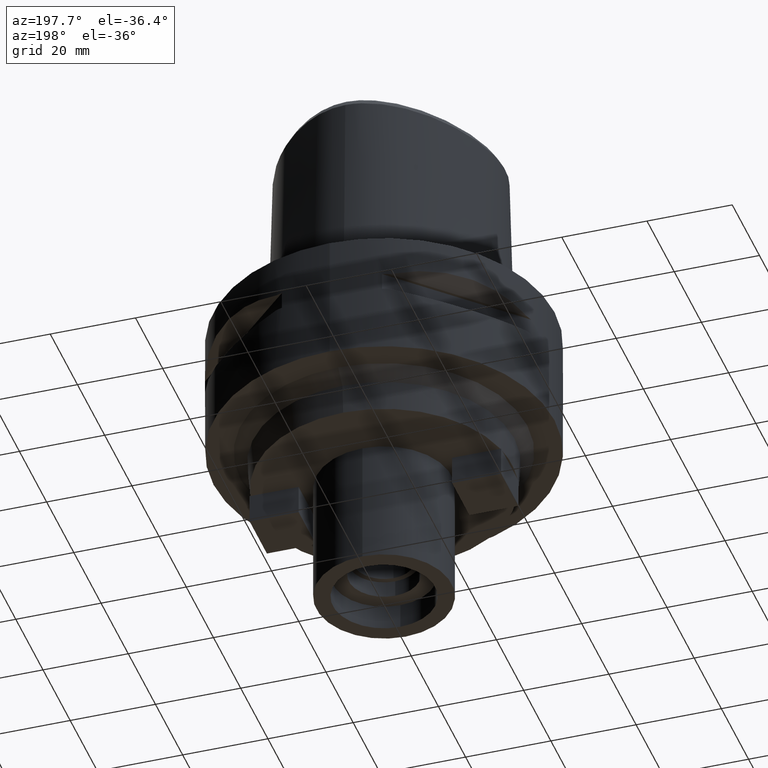
[diagram: clean part render]
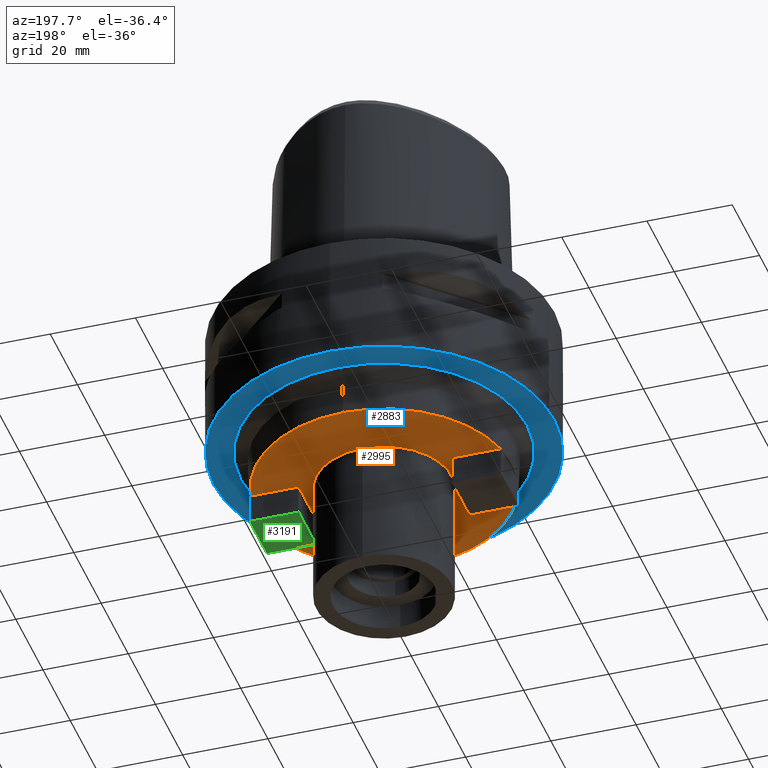
[diagram: same view with three faces highlighted in distinct colors, each labeled with its STEP entity id]
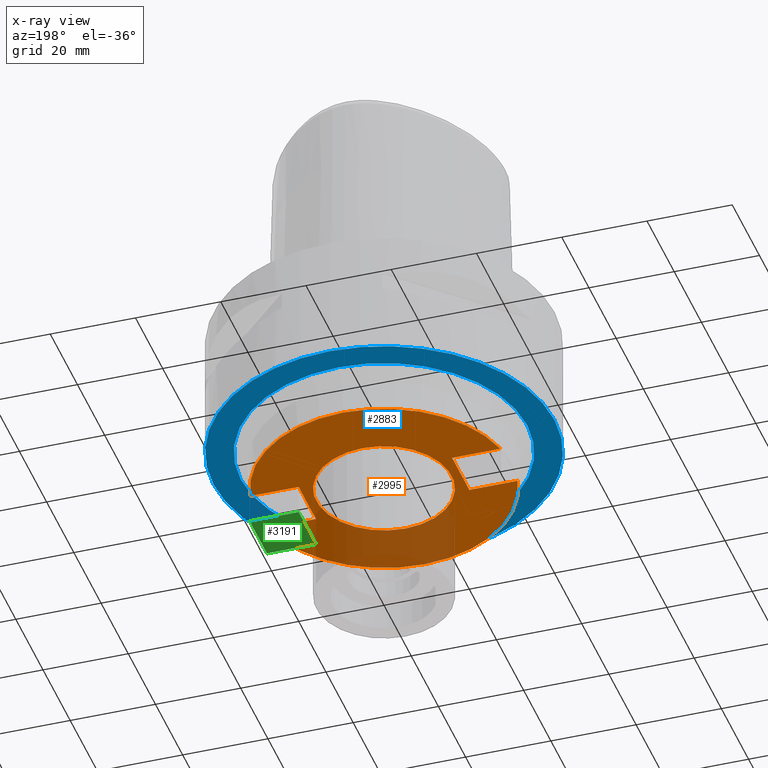
[diagram: x-ray of the same camera — body ghosted, the three highlighted faces saturated]
A machine part, auxiliary view with three faces highlighted in distinct colors.
The next image is the same camera in x-ray (body ghosted, the three faces saturated) — at least one of them is partly hidden behind the body in this view.
Their STEP definitions:

[orange] entity #2995 — the highlighted planar face has unit normal (0, 0, -1).
#633=DIRECTION('',(-1.E0,-1.255347302156E-14,0.E0));
#634=VECTOR('',#633,1.132025750228E1);
#635=CARTESIAN_POINT('',(-1.8E1,-6.35E0,-4.E1));
#636=LINE('',#635,#634);
#640=CARTESIAN_POINT('',(0.E0,0.E0,-4.E1));
#641=DIRECTION('',(0.E0,0.E0,1.E0));
#642=DIRECTION('',(-9.773419167427E-1,-2.116666666667E-1,0.E0));
#643=AXIS2_PLACEMENT_3D('',#640,#641,#642);
#648=CARTESIAN_POINT('',(0.E0,0.E0,-4.E1));
#649=DIRECTION('',(0.E0,0.E0,1.E0));
#650=DIRECTION('',(0.E0,-1.E0,0.E0));
#651=AXIS2_PLACEMENT_3D('',#648,#649,#650);
#656=DIRECTION('',(1.E0,0.E0,0.E0));
#657=VECTOR('',#656,1.132025750228E1);
#658=CARTESIAN_POINT('',(1.8E1,6.35E0,-4.E1));
#659=LINE('',#658,#657);
#663=CARTESIAN_POINT('',(0.E0,0.E0,-4.E1));
#664=DIRECTION('',(0.E0,0.E0,1.E0));
#665=DIRECTION('',(9.773419167427E-1,2.116666666667E-1,0.E0));
#666=AXIS2_PLACEMENT_3D('',#663,#664,#665);
#671=CARTESIAN_POINT('',(0.E0,0.E0,-4.E1));
#672=DIRECTION('',(0.E0,0.E0,1.E0));
#673=DIRECTION('',(0.E0,1.E0,0.E0));
#674=AXIS2_PLACEMENT_3D('',#671,#672,#673);
#679=CARTESIAN_POINT('',(0.E0,0.E0,-4.E1));
#680=DIRECTION('',(0.E0,0.E0,-1.E0));
#681=DIRECTION('',(0.E0,-1.E0,0.E0));
#682=AXIS2_PLACEMENT_3D('',#679,#680,#681);
#687=CARTESIAN_POINT('',(0.E0,0.E0,-4.E1));
#688=DIRECTION('',(0.E0,0.E0,-1.E0));
#689=DIRECTION('',(0.E0,1.E0,0.E0));
#690=AXIS2_PLACEMENT_3D('',#687,#688,#689);
#695=DIRECTION('',(-1.E0,0.E0,0.E0));
#696=VECTOR('',#695,1.132025750228E1);
#697=CARTESIAN_POINT('',(-1.8E1,6.35E0,-4.E1));
#698=LINE('',#697,#696);
#774=DIRECTION('',(0.E0,1.E0,0.E0));
#775=VECTOR('',#774,1.27E1);
#776=CARTESIAN_POINT('',(-1.8E1,-6.35E0,-4.E1));
#777=LINE('',#776,#775);
#831=DIRECTION('',(1.E0,0.E0,0.E0));
#832=VECTOR('',#831,1.132025750228E1);
#833=CARTESIAN_POINT('',(1.8E1,-6.35E0,-4.E1));
#834=LINE('',#833,#832);
#903=DIRECTION('',(0.E0,-1.E0,0.E0));
#904=VECTOR('',#903,1.27E1);
#905=CARTESIAN_POINT('',(1.8E1,6.35E0,-4.E1));
#906=LINE('',#905,#904);
#1891=CARTESIAN_POINT('',(2.932025750228E1,6.35E0,-4.E1));
#1893=VERTEX_POINT('',#1891);
#1896=CARTESIAN_POINT('',(2.932025750228E1,-6.35E0,-4.E1));
#1897=VERTEX_POINT('',#1896);
#1898=CARTESIAN_POINT('',(0.E0,-3.E1,-4.E1));
#1899=VERTEX_POINT('',#1898);
#1900=CARTESIAN_POINT('',(0.E0,3.E1,-4.E1));
#1901=VERTEX_POINT('',#1900);
#1906=CARTESIAN_POINT('',(1.8E1,6.35E0,-4.E1));
#1907=VERTEX_POINT('',#1906);
#1912=CARTESIAN_POINT('',(-1.8E1,6.35E0,-4.E1));
#1913=CARTESIAN_POINT('',(-2.932025750228E1,6.35E0,-4.E1));
#1914=VERTEX_POINT('',#1912);
#1915=VERTEX_POINT('',#1913);
#1916=CARTESIAN_POINT('',(-1.8E1,-6.35E0,-4.E1));
#1917=VERTEX_POINT('',#1916);
#1918=CARTESIAN_POINT('',(-2.932025750228E1,-6.35E0,-4.E1));
#1919=VERTEX_POINT('',#1918);
#1920=CARTESIAN_POINT('',(1.8E1,-6.35E0,-4.E1));
#1921=VERTEX_POINT('',#1920);
#1922=CARTESIAN_POINT('',(0.E0,-1.5875E1,-4.E1));
#1923=CARTESIAN_POINT('',(0.E0,1.5875E1,-4.E1));
#1924=VERTEX_POINT('',#1922);
#1925=VERTEX_POINT('',#1923);
#2965=CARTESIAN_POINT('',(0.E0,0.E0,-4.E1));
#2966=DIRECTION('',(0.E0,0.E0,-1.E0));
#2967=DIRECTION('',(0.E0,-1.E0,0.E0));
#2968=AXIS2_PLACEMENT_3D('',#2965,#2966,#2967);
#2969=PLANE('',#2968);
#2971=ORIENTED_EDGE('',*,*,#2970,.F.);
#2973=ORIENTED_EDGE('',*,*,#2972,.F.);
#2975=ORIENTED_EDGE('',*,*,#2974,.T.);
#2977=ORIENTED_EDGE('',*,*,#2976,.T.);
#2978=ORIENTED_EDGE('',*,*,#2923,.T.);
#2980=ORIENTED_EDGE('',*,*,#2979,.F.);
#2982=ORIENTED_EDGE('',*,*,#2981,.F.);
#2983=ORIENTED_EDGE('',*,*,#2953,.T.);
#2984=ORIENTED_EDGE('',*,*,#2930,.T.);
#2986=ORIENTED_EDGE('',*,*,#2985,.T.);
#2987=EDGE_LOOP('',(#2971,#2973,#2975,#2977,#2978,#2980,#2982,#2983,#2984,
#2986));
#2988=FACE_OUTER_BOUND('',#2987,.F.);
#2990=ORIENTED_EDGE('',*,*,#2989,.T.);
#2992=ORIENTED_EDGE('',*,*,#2991,.T.);
#2993=EDGE_LOOP('',(#2990,#2992));
#2994=FACE_BOUND('',#2993,.F.);
#644=CIRCLE('',#643,3.E1);
#652=CIRCLE('',#651,3.E1);
#667=CIRCLE('',#666,3.E1);
#675=CIRCLE('',#674,3.E1);
#683=CIRCLE('',#682,1.5875E1);
#691=CIRCLE('',#690,1.5875E1);
#2923=EDGE_CURVE('',#1899,#1897,#652,.T.);
#2930=EDGE_CURVE('',#1893,#1901,#667,.T.);
#2953=EDGE_CURVE('',#1907,#1893,#659,.T.);
#2970=EDGE_CURVE('',#1914,#1915,#698,.T.);
#2972=EDGE_CURVE('',#1917,#1914,#777,.T.);
#2974=EDGE_CURVE('',#1917,#1919,#636,.T.);
#2976=EDGE_CURVE('',#1919,#1899,#644,.T.);
#2979=EDGE_CURVE('',#1921,#1897,#834,.T.);
#2981=EDGE_CURVE('',#1907,#1921,#906,.T.);
#2985=EDGE_CURVE('',#1901,#1915,#675,.T.);
#2989=EDGE_CURVE('',#1924,#1925,#683,.T.);
#2991=EDGE_CURVE('',#1925,#1924,#691,.T.);
#2995=ADVANCED_FACE('',(#2988,#2994),#2969,.T.);

[blue] entity #2883 — the highlighted planar face has unit normal (0, 0, -1).
#521=CARTESIAN_POINT('',(0.E0,0.E0,-3.E1));
#522=DIRECTION('',(0.E0,0.E0,1.E0));
#523=DIRECTION('',(0.E0,-1.E0,0.E0));
#524=AXIS2_PLACEMENT_3D('',#521,#522,#523);
#529=CARTESIAN_POINT('',(0.E0,0.E0,-3.E1));
#530=DIRECTION('',(0.E0,0.E0,1.E0));
#531=DIRECTION('',(0.E0,1.E0,0.E0));
#532=AXIS2_PLACEMENT_3D('',#529,#530,#531);
#537=CARTESIAN_POINT('',(0.E0,0.E0,-3.E1));
#538=DIRECTION('',(0.E0,0.E0,-1.E0));
#539=DIRECTION('',(0.E0,-1.E0,0.E0));
#540=AXIS2_PLACEMENT_3D('',#537,#538,#539);
#545=CARTESIAN_POINT('',(0.E0,0.E0,-3.E1));
#546=DIRECTION('',(0.E0,0.E0,-1.E0));
#547=DIRECTION('',(0.E0,1.E0,0.E0));
#548=AXIS2_PLACEMENT_3D('',#545,#546,#547);
#1826=CARTESIAN_POINT('',(0.E0,4.E1,-3.E1));
#1827=VERTEX_POINT('',#1826);
#1828=CARTESIAN_POINT('',(0.E0,-4.E1,-3.E1));
#1829=VERTEX_POINT('',#1828);
#1882=CARTESIAN_POINT('',(0.E0,-3.361242064468E1,-3.E1));
#1883=CARTESIAN_POINT('',(0.E0,3.361242064468E1,-3.E1));
#1884=VERTEX_POINT('',#1882);
#1885=VERTEX_POINT('',#1883);
#2868=CARTESIAN_POINT('',(0.E0,0.E0,-3.E1));
#2869=DIRECTION('',(0.E0,0.E0,-1.E0));
#2870=DIRECTION('',(0.E0,-1.E0,0.E0));
#2871=AXIS2_PLACEMENT_3D('',#2868,#2869,#2870);
#2872=PLANE('',#2871);
#2873=ORIENTED_EDGE('',*,*,#2825,.T.);
#2874=ORIENTED_EDGE('',*,*,#2778,.T.);
#2875=EDGE_LOOP('',(#2873,#2874));
#2876=FACE_OUTER_BOUND('',#2875,.F.);
#2878=ORIENTED_EDGE('',*,*,#2877,.T.);
#2880=ORIENTED_EDGE('',*,*,#2879,.T.);
#2881=EDGE_LOOP('',(#2878,#2880));
#2882=FACE_BOUND('',#2881,.F.);
#525=CIRCLE('',#524,4.E1);
#533=CIRCLE('',#532,4.E1);
#541=CIRCLE('',#540,3.361242064468E1);
#549=CIRCLE('',#548,3.361242064468E1);
#2778=EDGE_CURVE('',#1827,#1829,#533,.T.);
#2825=EDGE_CURVE('',#1829,#1827,#525,.T.);
#2877=EDGE_CURVE('',#1884,#1885,#541,.T.);
#2879=EDGE_CURVE('',#1885,#1884,#549,.T.);
#2883=ADVANCED_FACE('',(#2876,#2882),#2872,.T.);

[green] entity #3191 — the highlighted planar face has unit normal (0, 0, -1).
#612=DIRECTION('',(1.E0,0.E0,0.E0));
#613=VECTOR('',#612,1.15E1);
#614=CARTESIAN_POINT('',(1.8E1,6.35E0,-4.7E1));
#615=LINE('',#614,#613);
#860=DIRECTION('',(0.E0,-1.E0,0.E0));
#861=VECTOR('',#860,1.27E1);
#862=CARTESIAN_POINT('',(2.95E1,6.35E0,-4.7E1));
#863=LINE('',#862,#861);
#889=DIRECTION('',(1.E0,0.E0,0.E0));
#890=VECTOR('',#889,1.15E1);
#891=CARTESIAN_POINT('',(1.8E1,-6.35E0,-4.7E1));
#892=LINE('',#891,#890);
#896=DIRECTION('',(0.E0,-1.E0,0.E0));
#897=VECTOR('',#896,1.27E1);
#898=CARTESIAN_POINT('',(1.8E1,6.35E0,-4.7E1));
#899=LINE('',#898,#897);
#1908=CARTESIAN_POINT('',(1.8E1,6.35E0,-4.7E1));
#1909=VERTEX_POINT('',#1908);
#1910=CARTESIAN_POINT('',(2.95E1,6.35E0,-4.7E1));
#1911=VERTEX_POINT('',#1910);
#1999=CARTESIAN_POINT('',(2.95E1,-6.35E0,-4.7E1));
#2000=VERTEX_POINT('',#1999);
#2001=CARTESIAN_POINT('',(1.8E1,-6.35E0,-4.7E1));
#2002=VERTEX_POINT('',#2001);
#3179=CARTESIAN_POINT('',(2.95E1,-6.35E0,-4.7E1));
#3180=DIRECTION('',(0.E0,0.E0,-1.E0));
#3181=DIRECTION('',(-1.E0,0.E0,0.E0));
#3182=AXIS2_PLACEMENT_3D('',#3179,#3180,#3181);
#3183=PLANE('',#3182);
#3184=ORIENTED_EDGE('',*,*,#3134,.T.);
#3185=ORIENTED_EDGE('',*,*,#3162,.F.);
#3186=ORIENTED_EDGE('',*,*,#2957,.F.);
#3188=ORIENTED_EDGE('',*,*,#3187,.T.);
#3189=EDGE_LOOP('',(#3184,#3185,#3186,#3188));
#3190=FACE_OUTER_BOUND('',#3189,.F.);
#2957=EDGE_CURVE('',#1909,#1911,#615,.T.);
#3134=EDGE_CURVE('',#2002,#2000,#892,.T.);
#3162=EDGE_CURVE('',#1911,#2000,#863,.T.);
#3187=EDGE_CURVE('',#1909,#2002,#899,.T.);
#3191=ADVANCED_FACE('',(#3190),#3183,.T.);